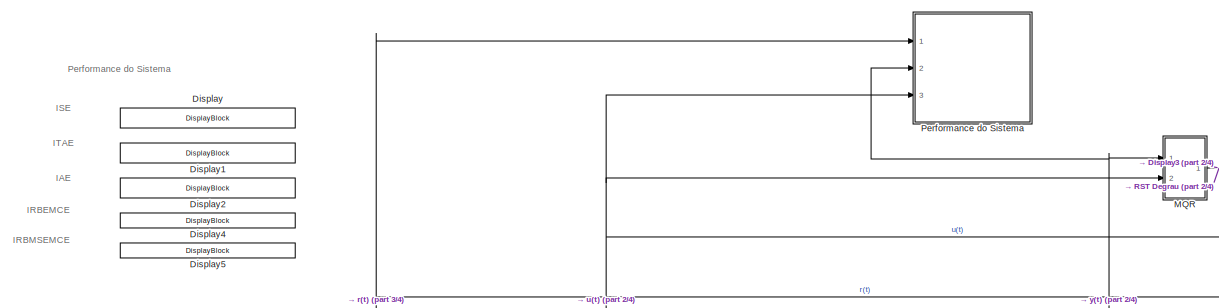
[diagram: root canvas - part 1/4, top center region]
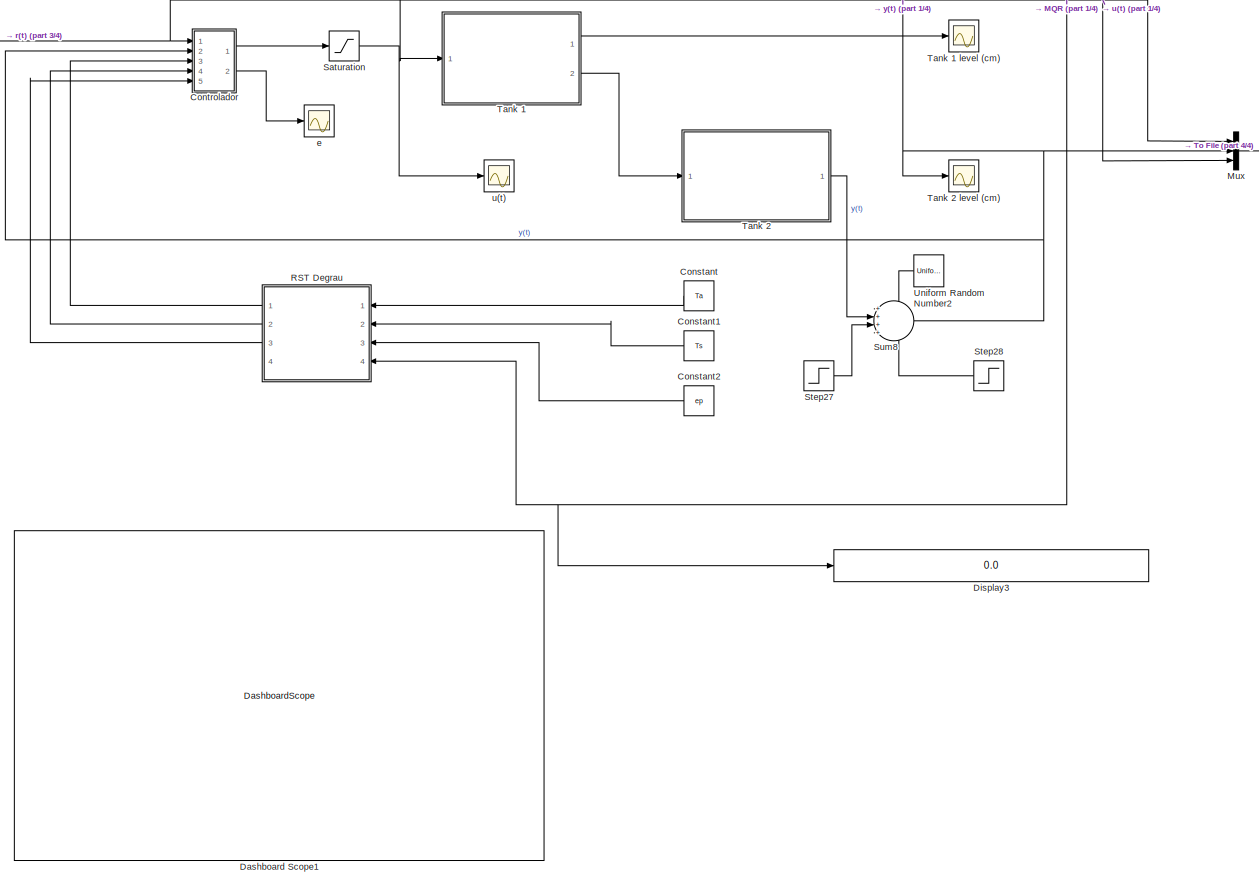
[diagram: root canvas - part 2/4, central region]
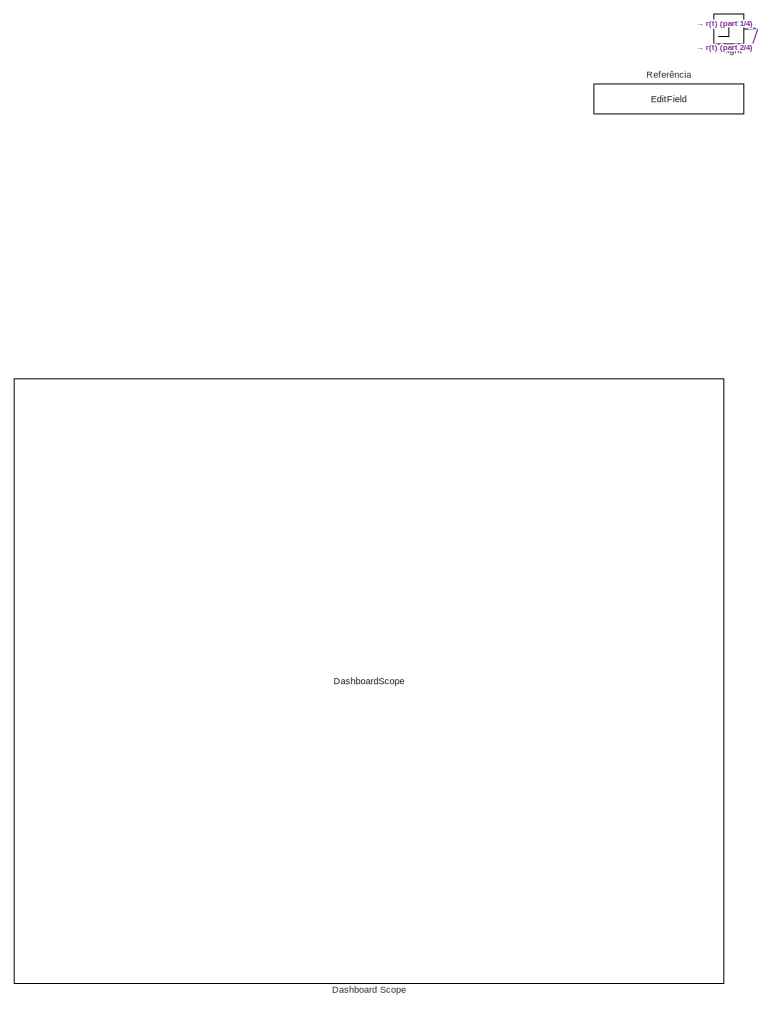
[diagram: root canvas - part 3/4, left side, full height]
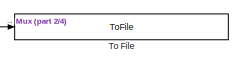
[diagram: root canvas - part 4/4, middle right region]
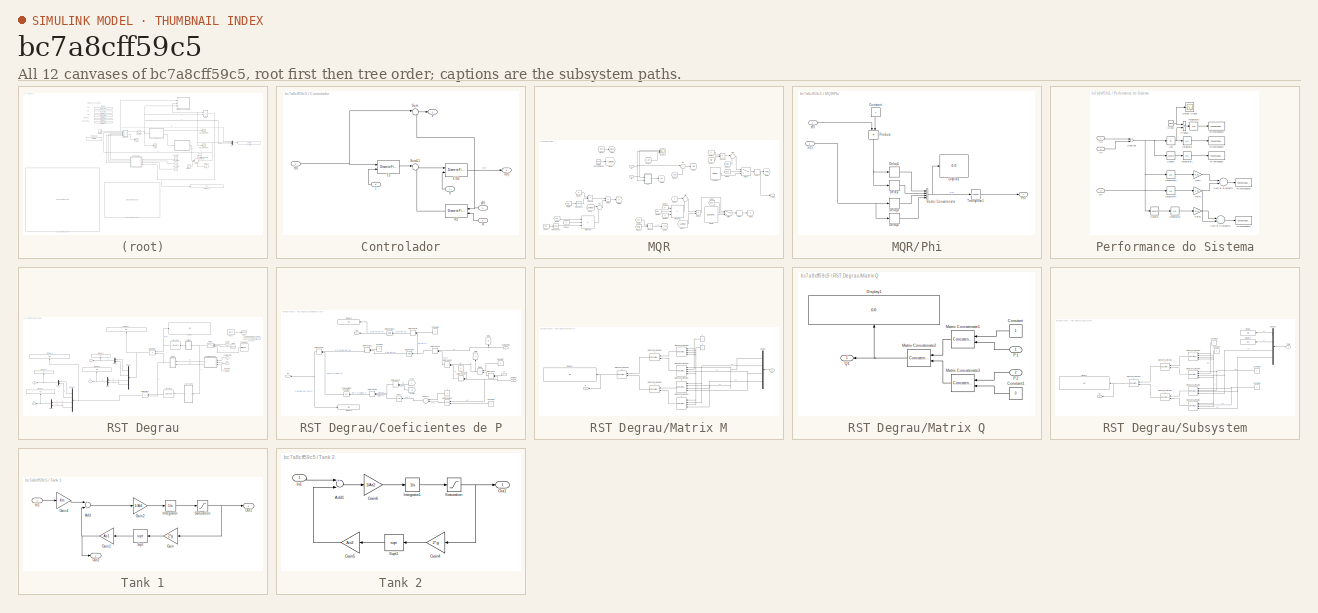
[diagram: thumbnail index - all 12 canvases of the model, root first then tree order]
MODEL slx_bc7a8cff59c5
KIND model
CONFIG AbsTol = auto
CONFIG EnableMultiTasking = off
CONFIG FixedStep = auto
CONFIG InitFcn = g = 981\nKm = 3.3\nAo1 = 0.17\nAt1 = 15.5528\nAo2 = 0.17\nAt2 = 15.5528\nTa = 0.1\nTs = 20\nep = 0.7\ninitial_theta = [-1.752 0.7527 -0.04995 0.05115]
CONFIG MaxStep = auto
CONFIG MinStep = auto
CONFIG RelTol = 1e-3
CONFIG SampleTimeConstraint = Unconstrained
CONFIG Solver = ode45
CONFIG SolverName = ode45
CONFIG StartTime = 0.0
CONFIG StopTime = 1000
BLOCK [Constant] Constant
  Value = Ta
BLOCK [Constant] Constant1
  Value = Ts
BLOCK [Constant] Constant2
  Value = ep
BLOCK [SubSystem] Controlador
  Ports = [5, 2]
  RequestExecContextInheritance = off
BLOCK [DiscreteFilter] Controlador/1//S3
  Denominator = 1
  DenominatorSource = Input port
  InputPortMap = u0,p3
  Numerator = 1
  Ports = [2, 1]
  SampleTime = Ta
  a0EqualsOne = on
BLOCK [Inport] Controlador/R
  IconDisplay = Port number
  Port = 3
BLOCK [DiscreteFilter] Controlador/R3
  Denominator = 1
  InputPortMap = u0,p1
  Numerator = [-620.2 131.3]
  NumeratorSource = Input port
  Ports = [2, 1]
  SampleTime = Ta
BLOCK [Inport] Controlador/S
  IconDisplay = Port number
  Port = 4
BLOCK [Sum] Controlador/Sum
  IconShape = round
  InputSameDT = off
  Inputs = |+-
  OutDataTypeStr = Inherit: Inherit via internal rule
  Ports = [2, 1]
  SaturateOnIntegerOverflow = off
BLOCK [Sum] Controlador/Sum11
  IconShape = round
  InputSameDT = off
  Inputs = |+-
  OutDataTypeStr = Inherit: Inherit via internal rule
  Ports = [2, 1]
  SaturateOnIntegerOverflow = off
BLOCK [Inport] Controlador/T
  IconDisplay = Port number
  Port = 5
BLOCK [DiscreteFilter] Controlador/T3
  Denominator = 1
  InputPortMap = u0,p1
  Numerator = 13.39
  NumeratorSource = Input port
  Ports = [2, 1]
  SampleTime = Ta
BLOCK [Outport] Controlador/e 
  IconDisplay = Port number
  Port = 2
BLOCK [Inport] Controlador/r(t)
  IconDisplay = Port number
BLOCK [Outport] Controlador/u(t)
  IconDisplay = Port number
BLOCK [Inport] Controlador/y(t)
  IconDisplay = Port number
  Port = 2
BLOCK [DashboardScope] Dashboard Scope
  WebBlockId = 688
BLOCK [DashboardScope] Dashboard Scope1
  WebBlockId = 689
BLOCK [DisplayBlock] Display
  LabelPosition = Hide
  WebBlockId = 787
BLOCK [DisplayBlock] Display1
  LabelPosition = Hide
  WebBlockId = 788
BLOCK [DisplayBlock] Display2
  LabelPosition = Hide
  WebBlockId = 789
BLOCK [Display] Display3
  Decimation = 1
  Ports = [1]
BLOCK [DisplayBlock] Display4
  LabelPosition = Hide
  WebBlockId = 790
BLOCK [DisplayBlock] Display5
  LabelPosition = Hide
  WebBlockId = 791
BLOCK [Step] Height
  After = 15
  SampleTime = 0
  Time = 0
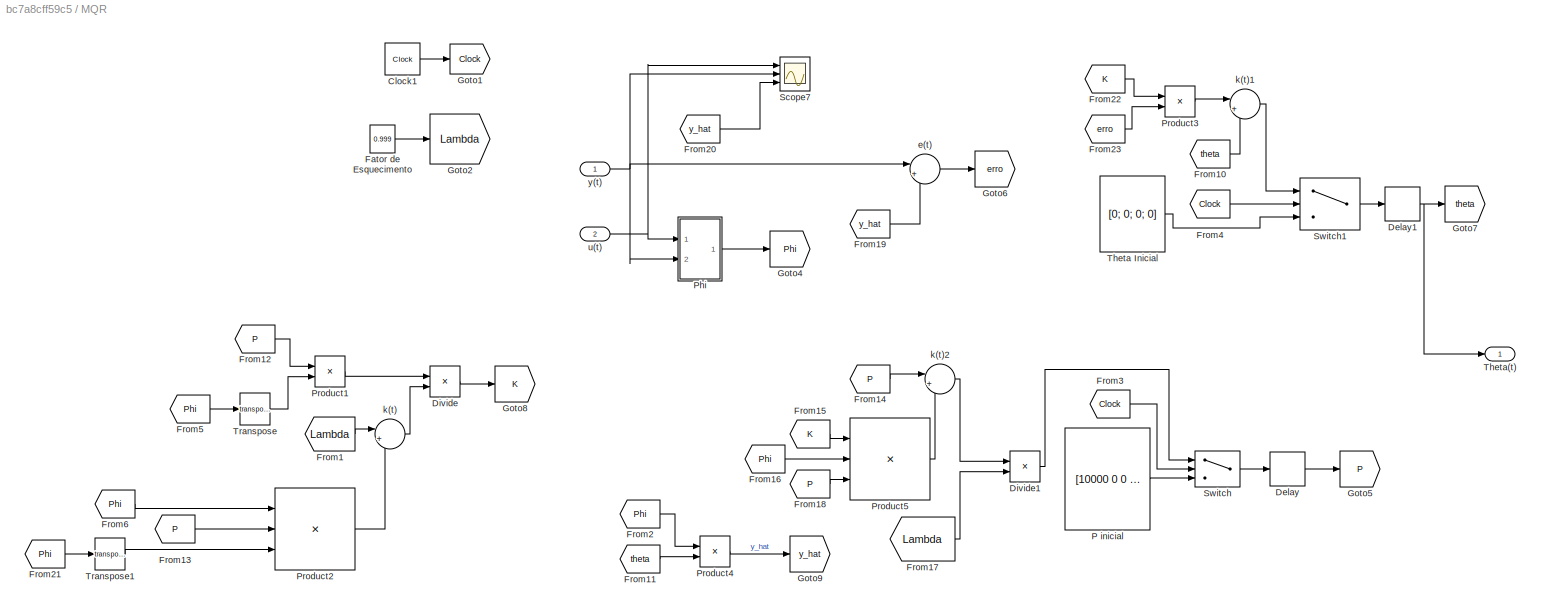
BLOCK [SubSystem] MQR
  Ports = [2, 1]
  RequestExecContextInheritance = off
BLOCK [Clock] MQR/Clock1
BLOCK [Delay] MQR/Delay
  DelayLength = 1
  InitialCondition = 0
  InputPortMap = u0
  Ports = [1, 1]
BLOCK [Delay] MQR/Delay1
  DelayLength = 1
  InitialCondition = 0
  InputPortMap = u0
  Ports = [1, 1]
BLOCK [Product] MQR/Divide
  InputSameDT = off
  Inputs = */
  OutDataTypeStr = Inherit: Inherit via internal rule
  Ports = [2, 1]
  RndMeth = Floor
  SaturateOnIntegerOverflow = off
BLOCK [Product] MQR/Divide1
  InputSameDT = off
  Inputs = */
  OutDataTypeStr = Inherit: Inherit via internal rule
  Ports = [2, 1]
  RndMeth = Floor
  SaturateOnIntegerOverflow = off
BLOCK [Constant] MQR/Fator de Esquecimento 
  Value = 0.999
BLOCK [From] MQR/From1
  GotoTag = Lambda
BLOCK [From] MQR/From10
  GotoTag = theta
BLOCK [From] MQR/From11
  GotoTag = theta
BLOCK [From] MQR/From12
  GotoTag = P
BLOCK [From] MQR/From13
  GotoTag = P
BLOCK [From] MQR/From14
  GotoTag = P
BLOCK [From] MQR/From15
  GotoTag = K
BLOCK [From] MQR/From16
  GotoTag = Phi
BLOCK [From] MQR/From17
  GotoTag = Lambda
BLOCK [From] MQR/From18
  GotoTag = P
BLOCK [From] MQR/From19
  GotoTag = y_hat
BLOCK [From] MQR/From2
  GotoTag = Phi
BLOCK [From] MQR/From20
  GotoTag = y_hat
BLOCK [From] MQR/From21
  GotoTag = Phi
BLOCK [From] MQR/From22
  GotoTag = K
BLOCK [From] MQR/From23
  GotoTag = erro
BLOCK [From] MQR/From3
  GotoTag = Clock
BLOCK [From] MQR/From4
  GotoTag = Clock
BLOCK [From] MQR/From5
  GotoTag = Phi
BLOCK [From] MQR/From6
  GotoTag = Phi
BLOCK [Goto] MQR/Goto1
  GotoTag = Clock
BLOCK [Goto] MQR/Goto2
  GotoTag = Lambda
BLOCK [Goto] MQR/Goto4
  GotoTag = Phi
BLOCK [Goto] MQR/Goto5
  GotoTag = P
BLOCK [Goto] MQR/Goto6
  GotoTag = erro
BLOCK [Goto] MQR/Goto7
  GotoTag = theta
BLOCK [Goto] MQR/Goto8
  GotoTag = K
BLOCK [Goto] MQR/Goto9
  GotoTag = y_hat
BLOCK [Constant] MQR/P inicial
  Value = [10000 0 0 0; 0 10000 0 0; 0 0 10000 0; 0 0 0 10000]
BLOCK [SubSystem] MQR/Phi
  Ports = [2, 1]
  RequestExecContextInheritance = off
BLOCK [Constant] MQR/Phi/Constant
  Value = -1
BLOCK [Delay] MQR/Phi/Delay
  InputPortMap = u0
  Ports = [1, 1]
BLOCK [Delay] MQR/Phi/Delay1
  DelayLength = 1
  InputPortMap = u0
  Ports = [1, 1]
BLOCK [Delay] MQR/Phi/Delay2
  InputPortMap = u0
  Ports = [1, 1]
BLOCK [Delay] MQR/Phi/Delay3
  DelayLength = 1
  InputPortMap = u0
  Ports = [1, 1]
BLOCK [Display] MQR/Phi/Display
  Decimation = 1
  Ports = [1]
BLOCK [Outport] MQR/Phi/Phi
  IconDisplay = Port number
BLOCK [Product] MQR/Phi/Product
  InputSameDT = off
  OutDataTypeStr = Inherit: Inherit via internal rule
  Ports = [2, 1]
  RndMeth = Floor
  SaturateOnIntegerOverflow = off
BLOCK [Math] MQR/Phi/Transpose1
  Operator = transpose
  Ports = [1, 1]
BLOCK [Concatenate] MQR/Phi/Vector Concatenate
  NumInputs = 4
  Ports = [4, 1]
BLOCK [Inport] MQR/Phi/u(t)
  IconDisplay = Port number
BLOCK [Inport] MQR/Phi/y(t)
  IconDisplay = Port number
  Port = 2
BLOCK [Product] MQR/Product1
  InputSameDT = off
  Multiplication = Matrix(*)
  OutDataTypeStr = Inherit: Inherit via internal rule
  Ports = [2, 1]
  RndMeth = Floor
  SaturateOnIntegerOverflow = off
BLOCK [Product] MQR/Product2
  InputSameDT = off
  Inputs = 3
  Multiplication = Matrix(*)
  OutDataTypeStr = Inherit: Inherit via internal rule
  Ports = [3, 1]
  RndMeth = Floor
  SaturateOnIntegerOverflow = off
BLOCK [Product] MQR/Product3
  InputSameDT = off
  Multiplication = Matrix(*)
  OutDataTypeStr = Inherit: Inherit via internal rule
  Ports = [2, 1]
  RndMeth = Floor
  SaturateOnIntegerOverflow = off
BLOCK [Product] MQR/Product4
  InputSameDT = off
  Multiplication = Matrix(*)
  OutDataTypeStr = Inherit: Inherit via internal rule
  Ports = [2, 1]
  RndMeth = Floor
  SaturateOnIntegerOverflow = off
BLOCK [Product] MQR/Product5
  InputSameDT = off
  Inputs = 3
  Multiplication = Matrix(*)
  OutDataTypeStr = Inherit: Inherit via internal rule
  Ports = [3, 1]
  RndMeth = Floor
  SaturateOnIntegerOverflow = off
BLOCK [Scope] MQR/Scope7
  Floating = off
  NumInputPorts = 3
  Ports = [3]
  ScopeSpecificationString = Simulink.scopes.TimeScopeBlockCfg('CurrentConfiguration', extmgr.ConfigurationSet(extmgr.Configuration('Core','General UI',true,'FigureColor',[0.156862745098039 0.156862745098039 0.156862745098039]),extmgr.Configuration('Core','Source UI',true),extmgr.Configuration('Sources','WiredSimulink',true,'DataLoggingVariableName','ScopeData1','DataLoggingSaveFormat','StructureWithTime','DataLoggingDecimati...<+3159ch>
BLOCK [Switch] MQR/Switch
  Criteria = u2 > Threshold
  InputSameDT = off
  SaturateOnIntegerOverflow = off
BLOCK [Switch] MQR/Switch1
  Criteria = u2 > Threshold
  InputSameDT = off
  SaturateOnIntegerOverflow = off
BLOCK [Constant] MQR/Theta Inicial 
  Value = [0; 0; 0; 0]
BLOCK [Outport] MQR/Theta(t) 
  IconDisplay = Port number
BLOCK [Math] MQR/Transpose
  Operator = transpose
  Ports = [1, 1]
BLOCK [Math] MQR/Transpose1
  Operator = transpose
  Ports = [1, 1]
BLOCK [Sum] MQR/e(t)
  IconShape = round
  InputSameDT = off
  Inputs = |+-
  OutDataTypeStr = Inherit: Inherit via internal rule
  Ports = [2, 1]
  SaturateOnIntegerOverflow = off
BLOCK [Sum] MQR/k(t)
  IconShape = round
  InputSameDT = off
  Inputs = |++
  OutDataTypeStr = Inherit: Inherit via internal rule
  Ports = [2, 1]
  SaturateOnIntegerOverflow = off
BLOCK [Sum] MQR/k(t)1
  IconShape = round
  InputSameDT = off
  Inputs = |++
  OutDataTypeStr = Inherit: Inherit via internal rule
  Ports = [2, 1]
  SaturateOnIntegerOverflow = off
BLOCK [Sum] MQR/k(t)2
  IconShape = round
  InputSameDT = off
  Inputs = |+-
  OutDataTypeStr = Inherit: Inherit via internal rule
  Ports = [2, 1]
  SaturateOnIntegerOverflow = off
BLOCK [Inport] MQR/u(t) 
  IconDisplay = Port number
  Port = 2
BLOCK [Inport] MQR/y(t)
  IconDisplay = Port number
BLOCK [Mux] Mux
  DisplayOption = bar
  Inputs = 3
  Ports = [3, 1]
BLOCK [SubSystem] Performance do Sistema
  Ports = [3]
  RequestExecContextInheritance = off
BLOCK [Abs] Performance do Sistema/Abs
  SaturateOnIntegerOverflow = off
BLOCK [Clock] Performance do Sistema/Clock
  Decimation = 1
BLOCK [Gain] Performance do Sistema/Gain
  Gain = 0.01
  OutDataTypeStr = Inherit: Inherit via internal rule
  ParamDataTypeStr = Inherit: Inherit via internal rule
  SaturateOnIntegerOverflow = off
BLOCK [Gain] Performance do Sistema/Gain1
  Gain = 0.01
  OutDataTypeStr = Inherit: Inherit via internal rule
  ParamDataTypeStr = Inherit: Inherit via internal rule
  SaturateOnIntegerOverflow = off
BLOCK [Gain] Performance do Sistema/Gain2
  Gain = 0.01
  OutDataTypeStr = Inherit: Inherit via internal rule
  ParamDataTypeStr = Inherit: Inherit via internal rule
  SaturateOnIntegerOverflow = off
BLOCK [Integrator] Performance do Sistema/Integrator
  Ports = [1, 1]
BLOCK [Integrator] Performance do Sistema/Integrator1
  Ports = [1, 1]
BLOCK [Integrator] Performance do Sistema/Integrator2
  Ports = [1, 1]
BLOCK [Integrator] Performance do Sistema/Integrator3
  Ports = [1, 1]
BLOCK [Integrator] Performance do Sistema/Integrator4
  Ports = [1, 1]
BLOCK [Integrator] Performance do Sistema/Integrator5
  Ports = [1, 1]
BLOCK [Scope] Performance do Sistema/Output Signal
  Floating = off
  NumInputPorts = 1
  Ports = [1]
  ScopeSpecificationString = Simulink.scopes.TimeScopeBlockCfg('CurrentConfiguration', extmgr.ConfigurationSet(extmgr.Configuration('Core','General UI',true,'FigureColor',[1 1 1]),extmgr.Configuration('Core','Source UI',true),extmgr.Configuration('Sources','WiredSimulink',true,'DataLoggingVariableName','ScopeData1','DataLoggingSaveFormat','StructureWithTime','DataLoggingDecimation','1','DataLoggingDecimateData',true),extmgr.C...<+2862ch>
BLOCK [Product] Performance do Sistema/Product
  InputSameDT = off
  OutDataTypeStr = Inherit: Inherit via internal rule
  Ports = [2, 1]
  RndMeth = Floor
  SaturateOnIntegerOverflow = off
BLOCK [Math] Performance do Sistema/Square
  Operator = square
  Ports = [1, 1]
BLOCK [Math] Performance do Sistema/Square1
  Operator = square
  Ports = [1, 1]
BLOCK [Sum] Performance do Sistema/Subtract
  InputSameDT = off
  Inputs = +-
  OutDataTypeStr = Inherit: Inherit via internal rule
  Ports = [2, 1]
  SaturateOnIntegerOverflow = off
BLOCK [Sum] Performance do Sistema/Sum of Elements
  InputSameDT = off
  OutDataTypeStr = Inherit: Inherit via internal rule
  Ports = [2, 1]
  SaturateOnIntegerOverflow = off
BLOCK [Sum] Performance do Sistema/Sum of Elements1
  InputSameDT = off
  OutDataTypeStr = Inherit: Inherit via internal rule
  Ports = [2, 1]
  SaturateOnIntegerOverflow = off
BLOCK [ToWorkspace] Performance do Sistema/To Workspace
  FixptAsFi = on
  MaxDataPoints = inf
  Ports = [1]
  SampleTime = -1
  Save2DSignal = 3-D array (concatenate along third dimension)
  SaveFormat = Timeseries
  VariableName = ISE
BLOCK [ToWorkspace] Performance do Sistema/To Workspace1
  FixptAsFi = on
  MaxDataPoints = inf
  Ports = [1]
  SampleTime = -1
  Save2DSignal = 3-D array (concatenate along third dimension)
  SaveFormat = Timeseries
  VariableName = IAE
BLOCK [ToWorkspace] Performance do Sistema/To Workspace2
  FixptAsFi = on
  MaxDataPoints = inf
  Ports = [1]
  SampleTime = -1
  Save2DSignal = 3-D array (concatenate along third dimension)
  SaveFormat = Timeseries
  VariableName = ITAE
BLOCK [ToWorkspace] Performance do Sistema/To Workspace3
  FixptAsFi = on
  MaxDataPoints = inf
  Ports = [1]
  SampleTime = -1
  Save2DSignal = 3-D array (concatenate along third dimension)
  SaveFormat = Timeseries
  VariableName = IRBEMCE
BLOCK [ToWorkspace] Performance do Sistema/To Workspace4
  FixptAsFi = on
  MaxDataPoints = inf
  Ports = [1]
  SampleTime = -1
  Save2DSignal = 3-D array (concatenate along third dimension)
  SaveFormat = Timeseries
  VariableName = IRBMSEMCE
BLOCK [Inport] Performance do Sistema/r(t)
  IconDisplay = Port number
BLOCK [Inport] Performance do Sistema/u(t)
  IconDisplay = Port number
  Port = 3
BLOCK [Inport] Performance do Sistema/y(t)
  IconDisplay = Port number
  Port = 2
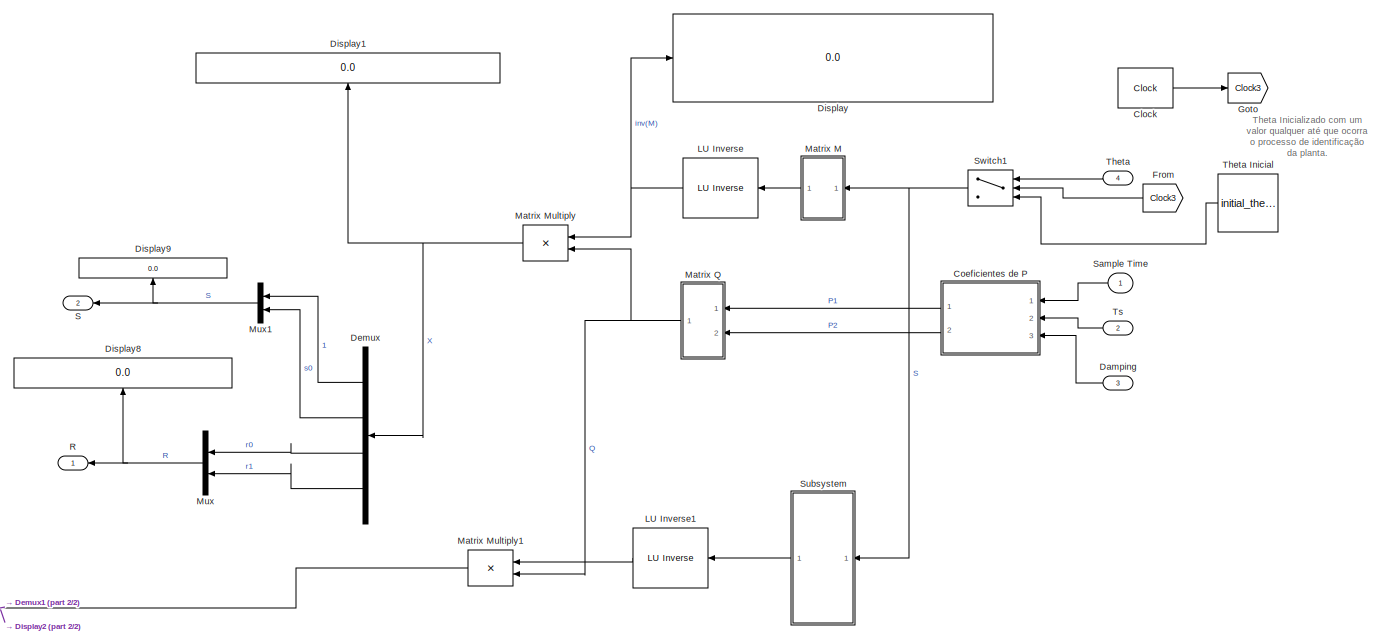
[diagram: RST Degrau - part 1/2, most of the canvas]
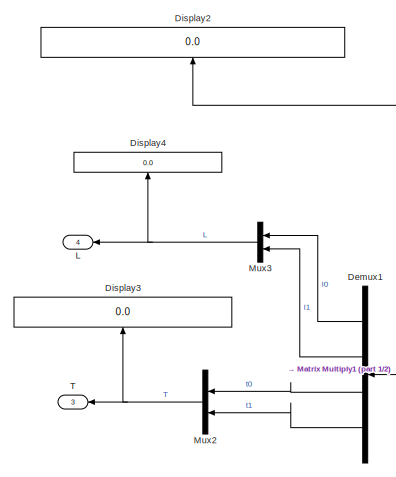
[diagram: RST Degrau - part 2/2, middle left region]
BLOCK [SubSystem] RST Degrau
  Ports = [4, 4]
  RequestExecContextInheritance = off
BLOCK [Reference] RST Degrau/ LU Inverse  REF=dspinverses/ LU Inverse
  Ports = [1, 1]
  SourceBlock = dspinverses/ LU Inverse
  SourceProductBaseCode = DS
  SourceProductName = DSP System Toolbox
  SourceType = LU Inverse
BLOCK [Reference] RST Degrau/ LU Inverse1  REF=dspinverses/ LU Inverse
  Ports = [1, 1]
  SourceBlock = dspinverses/ LU Inverse
  SourceProductBaseCode = DS
  SourceProductName = DSP System Toolbox
  SourceType = LU Inverse
BLOCK [Clock] RST Degrau/Clock
  DisplayTime = on
BLOCK [SubSystem] RST Degrau/Coeficientes de P
  Ports = [3, 2]
  RequestExecContextInheritance = off
BLOCK [Constant] RST Degrau/Coeficientes de P/ 
  Value = -1
BLOCK [Constant] RST Degrau/Coeficientes de P/1
BLOCK [Constant] RST Degrau/Coeficientes de P/Constant
  Value = 4
BLOCK [Constant] RST Degrau/Coeficientes de P/Constant1
  Value = -2
BLOCK [Constant] RST Degrau/Coeficientes de P/Constant2
  Value = 2
BLOCK [Constant] RST Degrau/Coeficientes de P/Constant3
  Value = 2
BLOCK [Inport] RST Degrau/Coeficientes de P/Damping
  IconDisplay = Port number
  Port = 3
BLOCK [Display] RST Degrau/Coeficientes de P/Display1
  Decimation = 1
  Ports = [1]
BLOCK [Display] RST Degrau/Coeficientes de P/Display3
  Decimation = 1
  Ports = [1]
BLOCK [Product] RST Degrau/Coeficientes de P/Divide
  InputSameDT = off
  Inputs = */
  OutDataTypeStr = Inherit: Inherit via internal rule
  Ports = [2, 1]
  RndMeth = Floor
  SaturateOnIntegerOverflow = off
BLOCK [DotProduct] RST Degrau/Coeficientes de P/Dot Product
  OutDataTypeStr = Inherit: Inherit via internal rule
BLOCK [DotProduct] RST Degrau/Coeficientes de P/Dot Product1
  OutDataTypeStr = Inherit: Inherit via internal rule
BLOCK [DotProduct] RST Degrau/Coeficientes de P/Dot Product2
  OutDataTypeStr = Inherit: Inherit via internal rule
BLOCK [DotProduct] RST Degrau/Coeficientes de P/Dot Product3
  OutDataTypeStr = Inherit: Inherit via internal rule
BLOCK [DotProduct] RST Degrau/Coeficientes de P/Dot Product4
  OutDataTypeStr = Inherit: Inherit via internal rule
BLOCK [DotProduct] RST Degrau/Coeficientes de P/Dot Product5
  OutDataTypeStr = Inherit: Inherit via internal rule
BLOCK [DotProduct] RST Degrau/Coeficientes de P/Dot Product6
  OutDataTypeStr = Inherit: Inherit via internal rule
BLOCK [DotProduct] RST Degrau/Coeficientes de P/Dot Product7
  OutDataTypeStr = Inherit: Inherit via internal rule
BLOCK [DotProduct] RST Degrau/Coeficientes de P/Dot Product8
  OutDataTypeStr = Inherit: Inherit via internal rule
BLOCK [From] RST Degrau/Coeficientes de P/From
BLOCK [From] RST Degrau/Coeficientes de P/From1
  GotoTag = B
BLOCK [Goto] RST Degrau/Coeficientes de P/Goto
BLOCK [Goto] RST Degrau/Coeficientes de P/Goto1
  GotoTag = B
BLOCK [Math] RST Degrau/Coeficientes de P/Math Function
  Ports = [1, 1]
BLOCK [Math] RST Degrau/Coeficientes de P/Math Function1
  Operator = pow
  Ports = [2, 1]
BLOCK [Math] RST Degrau/Coeficientes de P/Math Function2
  Ports = [1, 1]
BLOCK [Outport] RST Degrau/Coeficientes de P/P1
  IconDisplay = Port number
BLOCK [Outport] RST Degrau/Coeficientes de P/P2
  IconDisplay = Port number
  Port = 2
BLOCK [Inport] RST Degrau/Coeficientes de P/Sample Time
  IconDisplay = Port number
BLOCK [Sqrt] RST Degrau/Coeficientes de P/Sqrt
BLOCK [Sum] RST Degrau/Coeficientes de P/Subtract
  InputSameDT = off
  Inputs = +-
  OutDataTypeStr = Inherit: Inherit via internal rule
  Ports = [2, 1]
  SaturateOnIntegerOverflow = off
BLOCK [Trigonometry] RST Degrau/Coeficientes de P/Trigonometric Function1
  Operator = cos
  Ports = [1, 1]
BLOCK [Inport] RST Degrau/Coeficientes de P/Ts
  IconDisplay = Port number
  Port = 2
BLOCK [Inport] RST Degrau/Damping
  IconDisplay = Port number
  Port = 3
BLOCK [Demux] RST Degrau/Demux
  DisplayOption = bar
  Ports = [1, 4]
BLOCK [Demux] RST Degrau/Demux1
  DisplayOption = bar
  Ports = [1, 4]
BLOCK [Display] RST Degrau/Display
  Decimation = 1
  Ports = [1]
BLOCK [Display] RST Degrau/Display1
  Decimation = 1
  Ports = [1]
BLOCK [Display] RST Degrau/Display2
  Decimation = 1
  Ports = [1]
BLOCK [Display] RST Degrau/Display3
  Decimation = 1
  Ports = [1]
BLOCK [Display] RST Degrau/Display4
  Decimation = 1
  Ports = [1]
BLOCK [Display] RST Degrau/Display8
  Decimation = 1
  Ports = [1]
BLOCK [Display] RST Degrau/Display9
  Decimation = 1
  Ports = [1]
BLOCK [From] RST Degrau/From
  GotoTag = Clock3
BLOCK [Goto] RST Degrau/Goto
  GotoTag = Clock3
BLOCK [Outport] RST Degrau/L
  IconDisplay = Port number
  Port = 4
BLOCK [SubSystem] RST Degrau/Matrix M
  Ports = [1, 1]
  RequestExecContextInheritance = off
BLOCK [Constant] RST Degrau/Matrix M/ 1
  Value = 0
BLOCK [Constant] RST Degrau/Matrix M/2
BLOCK [Demux] RST Degrau/Matrix M/Demux
  DisplayOption = bar
  Ports = [1, 4]
BLOCK [Display] RST Degrau/Matrix M/Display1
  Decimation = 1
  Ports = [1]
BLOCK [Inport] RST Degrau/Matrix M/In1
  IconDisplay = Port number
BLOCK [Outport] RST Degrau/Matrix M/M
  IconDisplay = Port number
BLOCK [Concatenate] RST Degrau/Matrix M/Matrix Concatenate10
  ConcatenateDimension = 2
  Mode = Multidimensional array
  NumInputs = 4
  Ports = [4, 1]
BLOCK [Concatenate] RST Degrau/Matrix M/Matrix Concatenate11
  ConcatenateDimension = 2
  Mode = Multidimensional array
  NumInputs = 4
  Ports = [4, 1]
BLOCK [Concatenate] RST Degrau/Matrix M/Matrix Concatenate12
  Mode = Multidimensional array
  Ports = [2, 1]
BLOCK [Concatenate] RST Degrau/Matrix M/Matrix Concatenate13
  Mode = Multidimensional array
  Ports = [2, 1]
BLOCK [Concatenate] RST Degrau/Matrix M/Matrix Concatenate14
  Mode = Multidimensional array
  Ports = [2, 1]
BLOCK [Concatenate] RST Degrau/Matrix M/Matrix Concatenate6
  ConcatenateDimension = 2
  Mode = Multidimensional array
  NumInputs = 4
  Ports = [4, 1]
BLOCK [Concatenate] RST Degrau/Matrix M/Matrix Concatenate9
  ConcatenateDimension = 2
  Mode = Multidimensional array
  NumInputs = 4
  Ports = [4, 1]
BLOCK [Product] RST Degrau/Matrix Multiply
  InputSameDT = off
  Multiplication = Matrix(*)
  OutDataTypeStr = Inherit: Inherit via internal rule
  Ports = [2, 1]
  RndMeth = Floor
  SaturateOnIntegerOverflow = off
BLOCK [Product] RST Degrau/Matrix Multiply1
  InputSameDT = off
  Multiplication = Matrix(*)
  OutDataTypeStr = Inherit: Inherit via internal rule
  Ports = [2, 1]
  RndMeth = Floor
  SaturateOnIntegerOverflow = off
BLOCK [SubSystem] RST Degrau/Matrix Q
  Ports = [2, 1]
  RequestExecContextInheritance = off
BLOCK [Constant] RST Degrau/Matrix Q/Constant
BLOCK [Constant] RST Degrau/Matrix Q/Constant1
  Value = 0
BLOCK [Display] RST Degrau/Matrix Q/Display1
  Decimation = 1
  Ports = [1]
BLOCK [Concatenate] RST Degrau/Matrix Q/Matrix Concatenate1
  Mode = Multidimensional array
  Ports = [2, 1]
BLOCK [Concatenate] RST Degrau/Matrix Q/Matrix Concatenate2
  Mode = Multidimensional array
  Ports = [2, 1]
BLOCK [Concatenate] RST Degrau/Matrix Q/Matrix Concatenate3
  Mode = Multidimensional array
  Ports = [2, 1]
BLOCK [Inport] RST Degrau/Matrix Q/P1
  IconDisplay = Port number
BLOCK [Inport] RST Degrau/Matrix Q/P2
  IconDisplay = Port number
  Port = 2
BLOCK [Outport] RST Degrau/Matrix Q/Q1
  IconDisplay = Port number
BLOCK [Mux] RST Degrau/Mux
  DisplayOption = bar
  Inputs = 2
  Ports = [2, 1]
BLOCK [Mux] RST Degrau/Mux1
  DisplayOption = bar
  Inputs = 2
  Ports = [2, 1]
BLOCK [Mux] RST Degrau/Mux2
  DisplayOption = bar
  Inputs = 2
  Ports = [2, 1]
BLOCK [Mux] RST Degrau/Mux3
  DisplayOption = bar
  Inputs = 2
  Ports = [2, 1]
BLOCK [Outport] RST Degrau/R
  IconDisplay = Port number
BLOCK [Outport] RST Degrau/S
  IconDisplay = Port number
  Port = 2
BLOCK [Inport] RST Degrau/Sample Time
  IconDisplay = Port number
BLOCK [SubSystem] RST Degrau/Subsystem
  Ports = [1, 1]
  RequestExecContextInheritance = off
BLOCK [Constant] RST Degrau/Subsystem/Constant1
BLOCK [Constant] RST Degrau/Subsystem/Constant2
  Value = -1
BLOCK [Constant] RST Degrau/Subsystem/Constant3
  Value = 0
BLOCK [Constant] RST Degrau/Subsystem/Constant4
  Value = 0
BLOCK [Demux] RST Degrau/Subsystem/Demux1
  DisplayOption = bar
  Ports = [1, 4]
BLOCK [Display] RST Degrau/Subsystem/Display
  Decimation = 1
  Ports = [1]
BLOCK [Display] RST Degrau/Subsystem/Display1
  Decimation = 1
  Ports = [1]
BLOCK [Display] RST Degrau/Subsystem/Display2
  Decimation = 1
  Ports = [1]
BLOCK [Outport] RST Degrau/Subsystem/M2
  IconDisplay = Port number
BLOCK [Concatenate] RST Degrau/Subsystem/Matrix Concatenate12
  Mode = Multidimensional array
  Ports = [2, 1]
BLOCK [Concatenate] RST Degrau/Subsystem/Matrix Concatenate13
  Mode = Multidimensional array
  Ports = [2, 1]
BLOCK [Concatenate] RST Degrau/Subsystem/Matrix Concatenate14
  Mode = Multidimensional array
  Ports = [2, 1]
BLOCK [Concatenate] RST Degrau/Subsystem/Matrix Concatenate2
  ConcatenateDimension = 2
  Mode = Multidimensional array
  NumInputs = 4
  Ports = [4, 1]
BLOCK [Concatenate] RST Degrau/Subsystem/Matrix Concatenate4
  ConcatenateDimension = 2
  Mode = Multidimensional array
  NumInputs = 4
  Ports = [4, 1]
BLOCK [Concatenate] RST Degrau/Subsystem/Matrix Concatenate5
  ConcatenateDimension = 2
  Mode = Multidimensional array
  NumInputs = 4
  Ports = [4, 1]
BLOCK [Concatenate] RST Degrau/Subsystem/Matrix Concatenate6
  ConcatenateDimension = 2
  Mode = Multidimensional array
  NumInputs = 4
  Ports = [4, 1]
BLOCK [Inport] RST Degrau/Subsystem/Theta
  IconDisplay = Port number
BLOCK [Switch] RST Degrau/Switch1
  Criteria = u2 > Threshold
  InputSameDT = off
  SaturateOnIntegerOverflow = off
  Threshold = 1
BLOCK [Outport] RST Degrau/T
  IconDisplay = Port number
  Port = 3
BLOCK [Inport] RST Degrau/Theta
  IconDisplay = Port number
  Port = 4
BLOCK [Constant] RST Degrau/Theta Inicial
  Value = initial_theta
BLOCK [Inport] RST Degrau/Ts
  IconDisplay = Port number
  Port = 2
BLOCK [EditField] Referência
  Alignment = Center
  LabelPosition = Hide
  WebBlockId = 683
BLOCK [Saturate] Saturation
  InputPortMap = u0
  LowerLimit = -12
  Ports = [1, 1]
  UpperLimit = 12
BLOCK [Step] Step27
  SampleTime = 0
  Time = 60
BLOCK [Step] Step28
  After = -1
  SampleTime = 0
  Time = 61
BLOCK [Sum] Sum8
  IconShape = round
  InputSameDT = off
  Inputs = ++++
  OutDataTypeStr = Inherit: Inherit via internal rule
  Ports = [4, 1]
  SaturateOnIntegerOverflow = off
BLOCK [SubSystem] Tank 1
  Ports = [1, 2]
  RequestExecContextInheritance = off
BLOCK [Scope] Tank 1 level (cm) 
  Floating = off
  NumInputPorts = 1
  Ports = [1]
  ScopeSpecificationString = Simulink.scopes.TimeScopeBlockCfg('CurrentConfiguration', extmgr.ConfigurationSet(extmgr.Configuration('Core','General UI',true,'FigureColor',[0.156862745098039 0.156862745098039 0.156862745098039]),extmgr.Configuration('Core','Source UI',true),extmgr.Configuration('Sources','WiredSimulink',true,'DataLoggingSaveFormat','StructureWithTime','DataLoggingDecimation','1','DataLoggingDecimateData',true)...<+2771ch>
BLOCK [Sum] Tank 1/Add
  InputSameDT = off
  Inputs = +-
  OutDataTypeStr = Inherit: Inherit via internal rule
  Ports = [2, 1]
  SaturateOnIntegerOverflow = off
BLOCK [Gain] Tank 1/Gain
  Gain = 2*g
  OutDataTypeStr = Inherit: Inherit via internal rule
  ParamDataTypeStr = Inherit: Inherit via internal rule
  SaturateOnIntegerOverflow = off
BLOCK [Gain] Tank 1/Gain1
  Gain = Ao1
  OutDataTypeStr = Inherit: Inherit via internal rule
  ParamDataTypeStr = Inherit: Inherit via internal rule
  SaturateOnIntegerOverflow = off
BLOCK [Gain] Tank 1/Gain2
  Gain = 1/At1
  OutDataTypeStr = Inherit: Inherit via internal rule
  ParamDataTypeStr = Inherit: Inherit via internal rule
  SaturateOnIntegerOverflow = off
BLOCK [Gain] Tank 1/Gain4
  Gain = Km
  OutDataTypeStr = Inherit: Inherit via internal rule
  ParamDataTypeStr = Inherit: Inherit via internal rule
  SaturateOnIntegerOverflow = off
BLOCK [Inport] Tank 1/In1
  IconDisplay = Port number
BLOCK [Integrator] Tank 1/Integrator
  Ports = [1, 1]
BLOCK [Outport] Tank 1/Out1
  IconDisplay = Port number
BLOCK [Outport] Tank 1/Out2
  IconDisplay = Port number
  Port = 2
BLOCK [Saturate] Tank 1/Saturation
  InputPortMap = u0
  LowerLimit = 0
  Ports = [1, 1]
  UpperLimit = 30
BLOCK [Sqrt] Tank 1/Sqrt
BLOCK [SubSystem] Tank 2
  Ports = [1, 1]
  RequestExecContextInheritance = off
BLOCK [Scope] Tank 2 level (cm) 
  Floating = off
  NumInputPorts = 1
  Ports = [1]
  ScopeSpecificationString = Simulink.scopes.TimeScopeBlockCfg('CurrentConfiguration', extmgr.ConfigurationSet(extmgr.Configuration('Core','General UI',true,'FigureColor',[0.156862745098039 0.156862745098039 0.156862745098039]),extmgr.Configuration('Core','Source UI',true),extmgr.Configuration('Sources','WiredSimulink',true,'DataLoggingVariableName','ScopeData1','DataLoggingSaveFormat','StructureWithTime','DataLoggingDecimati...<+2781ch>
BLOCK [Sum] Tank 2/Add1
  InputSameDT = off
  Inputs = +-
  OutDataTypeStr = Inherit: Inherit via internal rule
  Ports = [2, 1]
  SaturateOnIntegerOverflow = off
BLOCK [Gain] Tank 2/Gain4
  Gain = 2*g
  OutDataTypeStr = Inherit: Inherit via internal rule
  ParamDataTypeStr = Inherit: Inherit via internal rule
  SaturateOnIntegerOverflow = off
BLOCK [Gain] Tank 2/Gain5
  Gain = Ao2
  OutDataTypeStr = Inherit: Inherit via internal rule
  ParamDataTypeStr = Inherit: Inherit via internal rule
  SaturateOnIntegerOverflow = off
BLOCK [Gain] Tank 2/Gain6
  Gain = 1/At2
  OutDataTypeStr = Inherit: Inherit via internal rule
  ParamDataTypeStr = Inherit: Inherit via internal rule
  SaturateOnIntegerOverflow = off
BLOCK [Inport] Tank 2/In1
  IconDisplay = Port number
BLOCK [Integrator] Tank 2/Integrator1
  Ports = [1, 1]
BLOCK [Outport] Tank 2/Out1
  IconDisplay = Port number
BLOCK [Saturate] Tank 2/Saturation
  InputPortMap = u0
  LowerLimit = 0
  Ports = [1, 1]
  UpperLimit = 30
BLOCK [Sqrt] Tank 2/Sqrt1
BLOCK [ToFile] To File
  Filename = auto_reg_coupled_tanks_with_error_values.mat
  Ports = [1]
BLOCK [UniformRandomNumber] Uniform Random Number2
  Maximum = 0.01
  Minimum = -0.01
  SampleTime = 0
BLOCK [Scope] e
  Floating = off
  NumInputPorts = 1
  Ports = [1]
  ScopeSpecificationString = Simulink.scopes.TimeScopeBlockCfg('CurrentConfiguration', extmgr.ConfigurationSet(extmgr.Configuration('Core','General UI',true,'FigureColor',[0.156862745098039 0.156862745098039 0.156862745098039]),extmgr.Configuration('Core','Source UI',true),extmgr.Configuration('Sources','WiredSimulink',true,'DataLoggingSaveFormat','StructureWithTime','DataLoggingDecimation','1','DataLoggingDecimateData',true,...<+2815ch>
BLOCK [Scope] u(t)
  Floating = off
  NumInputPorts = 1
  Ports = [1]
  ScopeSpecificationString = Simulink.scopes.TimeScopeBlockCfg('CurrentConfiguration', extmgr.ConfigurationSet(extmgr.Configuration('Core','General UI',true,'FigureColor',[0.156862745098039 0.156862745098039 0.156862745098039]),extmgr.Configuration('Core','Source UI',true),extmgr.Configuration('Sources','WiredSimulink',true,'DataLoggingSaveFormat','StructureWithTime','DataLoggingDecimation','1','DataLoggingDecimateData',true,...<+2777ch>
ANNOTATION (root): Performance do Sistema
ANNOTATION (root): IAE
ANNOTATION (root): IRBEMCE
ANNOTATION (root): IRBMSEMCE
ANNOTATION (root): ISE
ANNOTATION (root): ITAE
ANNOTATION RST Degrau: Theta Inicializado com um valor qualquer até que ocorra o processo de identificação da planta.
LINE Constant1:1 -> RST Degrau:2
LINE Constant2:1 -> RST Degrau:3
LINE Constant:1 -> RST Degrau:1
LINE Controlador/1//S3:1 -> Controlador/u(t):1
LINE Controlador/R3:1 -> Controlador/Sum11:2
LINE Controlador/R:1 -> Controlador/R3:2
LINE Controlador/S:1 -> Controlador/1//S3:2
LINE Controlador/Sum11:1 -> Controlador/1//S3:1
LINE Controlador/Sum:1 -> Controlador/e :1
LINE Controlador/T3:1 -> Controlador/Sum11:1
LINE Controlador/T:1 -> Controlador/T3:2
NET Controlador/r(t):1 -> Controlador/Sum:1, Controlador/T3:1
NET Controlador/y(t):1 -> Controlador/R3:1, Controlador/Sum:2
LINE Controlador:1 -> Saturation:1
LINE Controlador:2 -> e:1
NET Height:1 -> Controlador:1, Mux:1, Performance do Sistema:1
LINE MQR/Clock1:1 -> MQR/Goto1:1
NET MQR/Delay1:1 -> MQR/Goto7:1, MQR/Theta(t) :1
LINE MQR/Delay:1 -> MQR/Goto5:1
LINE MQR/Divide1:1 -> MQR/Switch:1
LINE MQR/Divide:1 -> MQR/Goto8:1
LINE MQR/Fator de Esquecimento :1 -> MQR/Goto2:1
LINE MQR/From10:1 -> MQR/k(t)1:2
LINE MQR/From11:1 -> MQR/Product4:2
LINE MQR/From12:1 -> MQR/Product1:1
LINE MQR/From13:1 -> MQR/Product2:2
LINE MQR/From14:1 -> MQR/k(t)2:1
LINE MQR/From15:1 -> MQR/Product5:1
LINE MQR/From16:1 -> MQR/Product5:2
LINE MQR/From17:1 -> MQR/Divide1:2
LINE MQR/From18:1 -> MQR/Product5:3
LINE MQR/From19:1 -> MQR/e(t):2
LINE MQR/From1:1 -> MQR/k(t):1
LINE MQR/From20:1 -> MQR/Scope7:3
LINE MQR/From21:1 -> MQR/Transpose1:1
LINE MQR/From22:1 -> MQR/Product3:1
LINE MQR/From23:1 -> MQR/Product3:2
LINE MQR/From2:1 -> MQR/Product4:1
LINE MQR/From3:1 -> MQR/Switch:2
LINE MQR/From4:1 -> MQR/Switch1:2
LINE MQR/From5:1 -> MQR/Transpose:1
LINE MQR/From6:1 -> MQR/Product2:1
LINE MQR/P inicial:1 -> MQR/Switch:3
LINE MQR/Phi/Constant:1 -> MQR/Phi/Product:2
LINE MQR/Phi/Delay1:1 -> MQR/Phi/Vector Concatenate:1
LINE MQR/Phi/Delay2:1 -> MQR/Phi/Vector Concatenate:4
LINE MQR/Phi/Delay3:1 -> MQR/Phi/Vector Concatenate:3
LINE MQR/Phi/Delay:1 -> MQR/Phi/Vector Concatenate:2
NET MQR/Phi/Product:1 -> MQR/Phi/Delay1:1, MQR/Phi/Delay:1
LINE MQR/Phi/Transpose1:1 -> MQR/Phi/Phi:1
NET MQR/Phi/Vector Concatenate:1 -> MQR/Phi/Display:1, MQR/Phi/Transpose1:1
NET MQR/Phi/u(t):1 -> MQR/Phi/Delay2:1, MQR/Phi/Delay3:1
LINE MQR/Phi/y(t):1 -> MQR/Phi/Product:1
LINE MQR/Phi:1 -> MQR/Goto4:1
LINE MQR/Product1:1 -> MQR/Divide:1
LINE MQR/Product2:1 -> MQR/k(t):2
LINE MQR/Product3:1 -> MQR/k(t)1:1
LINE MQR/Product4:1 -> MQR/Goto9:1
LINE MQR/Product5:1 -> MQR/k(t)2:2
LINE MQR/Switch1:1 -> MQR/Delay1:1
LINE MQR/Switch:1 -> MQR/Delay:1
LINE MQR/Theta Inicial :1 -> MQR/Switch1:3
LINE MQR/Transpose1:1 -> MQR/Product2:3
LINE MQR/Transpose:1 -> MQR/Product1:2
LINE MQR/e(t):1 -> MQR/Goto6:1
LINE MQR/k(t)1:1 -> MQR/Switch1:1
LINE MQR/k(t)2:1 -> MQR/Divide1:1
LINE MQR/k(t):1 -> MQR/Divide:2
NET MQR/u(t) :1 -> MQR/Phi:1, MQR/Scope7:1
NET MQR/y(t):1 -> MQR/Phi:2, MQR/Scope7:2, MQR/e(t):1
NET MQR:1 -> Display3:1, RST Degrau:4
LINE Mux:1 -> To File:1
NET Performance do Sistema/Abs:1 -> Performance do Sistema/Integrator:1, Performance do Sistema/Product:2
NET Performance do Sistema/Clock:1 -> Performance do Sistema/Output Signal:1, Performance do Sistema/Product:1
NET Performance do Sistema/Gain1:1 -> Performance do Sistema/Sum of Elements1:2, Performance do Sistema/Sum of Elements:2
LINE Performance do Sistema/Gain2:1 -> Performance do Sistema/Sum of Elements1:1
LINE Performance do Sistema/Gain:1 -> Performance do Sistema/Sum of Elements:1
LINE Performance do Sistema/Integrator1:1 -> Performance do Sistema/To Workspace:1
LINE Performance do Sistema/Integrator2:1 -> Performance do Sistema/To Workspace2:1
LINE Performance do Sistema/Integrator3:1 -> Performance do Sistema/Gain:1
LINE Performance do Sistema/Integrator4:1 -> Performance do Sistema/Gain1:1
LINE Performance do Sistema/Integrator5:1 -> Performance do Sistema/Gain2:1
LINE Performance do Sistema/Integrator:1 -> Performance do Sistema/To Workspace1:1
LINE Performance do Sistema/Product:1 -> Performance do Sistema/Integrator2:1
LINE Performance do Sistema/Square1:1 -> Performance do Sistema/Integrator5:1
LINE Performance do Sistema/Square:1 -> Performance do Sistema/Integrator1:1
NET Performance do Sistema/Subtract:1 -> Performance do Sistema/Abs:1, Performance do Sistema/Integrator3:1, Performance do Sistema/Square1:1, Performance do Sistema/Square:1
LINE Performance do Sistema/Sum of Elements1:1 -> Performance do Sistema/To Workspace4:1
LINE Performance do Sistema/Sum of Elements:1 -> Performance do Sistema/To Workspace3:1
LINE Performance do Sistema/r(t):1 -> Performance do Sistema/Subtract:1
LINE Performance do Sistema/u(t):1 -> Performance do Sistema/Integrator4:1
LINE Performance do Sistema/y(t):1 -> Performance do Sistema/Subtract:2
LINE RST Degrau/ LU Inverse1:1 -> RST Degrau/Matrix Multiply1:1
NET RST Degrau/ LU Inverse:1 -> RST Degrau/Display:1, RST Degrau/Matrix Multiply:1
LINE RST Degrau/Clock:1 -> RST Degrau/Goto:1
LINE RST Degrau/Coeficientes de P/ :1 -> RST Degrau/Coeficientes de P/Dot Product3:1
LINE RST Degrau/Coeficientes de P/1:1 -> RST Degrau/Coeficientes de P/Subtract:1
LINE RST Degrau/Coeficientes de P/Constant1:1 -> RST Degrau/Coeficientes de P/Dot Product1:1
LINE RST Degrau/Coeficientes de P/Constant2:1 -> RST Degrau/Coeficientes de P/Math Function1:2
LINE RST Degrau/Coeficientes de P/Constant3:1 -> RST Degrau/Coeficientes de P/Dot Product8:1
LINE RST Degrau/Coeficientes de P/Constant:1 -> RST Degrau/Coeficientes de P/Divide:1
NET RST Degrau/Coeficientes de P/Damping:1 -> RST Degrau/Coeficientes de P/Dot Product3:2, RST Degrau/Coeficientes de P/Dot Product:2, RST Degrau/Coeficientes de P/Math Function1:1
NET RST Degrau/Coeficientes de P/Divide:1 -> RST Degrau/Coeficientes de P/Dot Product2:1, RST Degrau/Coeficientes de P/Goto:1
LINE RST Degrau/Coeficientes de P/Dot Product1:1 -> RST Degrau/Coeficientes de P/Dot Product5:1
LINE RST Degrau/Coeficientes de P/Dot Product2:1 -> RST Degrau/Coeficientes de P/Dot Product4:2
LINE RST Degrau/Coeficientes de P/Dot Product3:1 -> RST Degrau/Coeficientes de P/Dot Product2:2
NET RST Degrau/Coeficientes de P/Dot Product4:1 -> RST Degrau/Coeficientes de P/Dot Product8:2, RST Degrau/Coeficientes de P/Math Function:1
NET RST Degrau/Coeficientes de P/Dot Product5:1 -> RST Degrau/Coeficientes de P/Display3:1, RST Degrau/Coeficientes de P/P1:1
LINE RST Degrau/Coeficientes de P/Dot Product6:1 -> RST Degrau/Coeficientes de P/Trigonometric Function1:1
LINE RST Degrau/Coeficientes de P/Dot Product7:1 -> RST Degrau/Coeficientes de P/Dot Product6:1
LINE RST Degrau/Coeficientes de P/Dot Product8:1 -> RST Degrau/Coeficientes de P/Math Function2:1
LINE RST Degrau/Coeficientes de P/Dot Product:1 -> RST Degrau/Coeficientes de P/Divide:2
LINE RST Degrau/Coeficientes de P/From1:1 -> RST Degrau/Coeficientes de P/Dot Product7:2
LINE RST Degrau/Coeficientes de P/From:1 -> RST Degrau/Coeficientes de P/Dot Product7:1
LINE RST Degrau/Coeficientes de P/Math Function1:1 -> RST Degrau/Coeficientes de P/Subtract:2
NET RST Degrau/Coeficientes de P/Math Function2:1 -> RST Degrau/Coeficientes de P/Display1:1, RST Degrau/Coeficientes de P/P2:1
LINE RST Degrau/Coeficientes de P/Math Function:1 -> RST Degrau/Coeficientes de P/Dot Product1:2
NET RST Degrau/Coeficientes de P/Sample Time:1 -> RST Degrau/Coeficientes de P/Dot Product4:1, RST Degrau/Coeficientes de P/Goto1:1
LINE RST Degrau/Coeficientes de P/Sqrt:1 -> RST Degrau/Coeficientes de P/Dot Product6:2
LINE RST Degrau/Coeficientes de P/Subtract:1 -> RST Degrau/Coeficientes de P/Sqrt:1
LINE RST Degrau/Coeficientes de P/Trigonometric Function1:1 -> RST Degrau/Coeficientes de P/Dot Product5:2
LINE RST Degrau/Coeficientes de P/Ts:1 -> RST Degrau/Coeficientes de P/Dot Product:1
LINE RST Degrau/Coeficientes de P:1 -> RST Degrau/Matrix Q:1
LINE RST Degrau/Coeficientes de P:2 -> RST Degrau/Matrix Q:2
LINE RST Degrau/Damping:1 -> RST Degrau/Coeficientes de P:3
LINE RST Degrau/Demux1:1 -> RST Degrau/Mux3:1
LINE RST Degrau/Demux1:2 -> RST Degrau/Mux3:2
LINE RST Degrau/Demux1:3 -> RST Degrau/Mux2:1
LINE RST Degrau/Demux1:4 -> RST Degrau/Mux2:2
LINE RST Degrau/Demux:1 -> RST Degrau/Mux1:1
LINE RST Degrau/Demux:2 -> RST Degrau/Mux1:2
LINE RST Degrau/Demux:3 -> RST Degrau/Mux:1
LINE RST Degrau/Demux:4 -> RST Degrau/Mux:2
LINE RST Degrau/From:1 -> RST Degrau/Switch1:2
NET RST Degrau/Matrix M/ 1:1 -> RST Degrau/Matrix M/Matrix Concatenate11:1, RST Degrau/Matrix M/Matrix Concatenate11:3, RST Degrau/Matrix M/Matrix Concatenate6:2, RST Degrau/Matrix M/Matrix Concatenate6:3, RST Degrau/Matrix M/Matrix Concatenate6:4, RST Degrau/Matrix M/Matrix Concatenate9:4
NET RST Degrau/Matrix M/2:1 -> RST Degrau/Matrix M/Matrix Concatenate6:1, RST Degrau/Matrix M/Matrix Concatenate9:2
NET RST Degrau/Matrix M/Demux:1 -> RST Degrau/Matrix M/Matrix Concatenate10:2, RST Degrau/Matrix M/Matrix Concatenate9:1
NET RST Degrau/Matrix M/Demux:2 -> RST Degrau/Matrix M/Matrix Concatenate10:1, RST Degrau/Matrix M/Matrix Concatenate11:2
NET RST Degrau/Matrix M/Demux:3 -> RST Degrau/Matrix M/Matrix Concatenate10:4, RST Degrau/Matrix M/Matrix Concatenate9:3
NET RST Degrau/Matrix M/Demux:4 -> RST Degrau/Matrix M/Matrix Concatenate10:3, RST Degrau/Matrix M/Matrix Concatenate11:4
LINE RST Degrau/Matrix M/In1:1 -> RST Degrau/Matrix M/Demux:1
LINE RST Degrau/Matrix M/Matrix Concatenate10:1 -> RST Degrau/Matrix M/Matrix Concatenate13:1
LINE RST Degrau/Matrix M/Matrix Concatenate11:1 -> RST Degrau/Matrix M/Matrix Concatenate13:2
LINE RST Degrau/Matrix M/Matrix Concatenate12:1 -> RST Degrau/Matrix M/Matrix Concatenate14:1
LINE RST Degrau/Matrix M/Matrix Concatenate13:1 -> RST Degrau/Matrix M/Matrix Concatenate14:2
NET RST Degrau/Matrix M/Matrix Concatenate14:1 -> RST Degrau/Matrix M/Display1:1, RST Degrau/Matrix M/M:1
LINE RST Degrau/Matrix M/Matrix Concatenate6:1 -> RST Degrau/Matrix M/Matrix Concatenate12:1
LINE RST Degrau/Matrix M/Matrix Concatenate9:1 -> RST Degrau/Matrix M/Matrix Concatenate12:2
LINE RST Degrau/Matrix M:1 -> RST Degrau/ LU Inverse:1
NET RST Degrau/Matrix Multiply1:1 -> RST Degrau/Demux1:1, RST Degrau/Display2:1
NET RST Degrau/Matrix Multiply:1 -> RST Degrau/Demux:1, RST Degrau/Display1:1
LINE RST Degrau/Matrix Q/Constant1:1 -> RST Degrau/Matrix Q/Matrix Concatenate3:2
LINE RST Degrau/Matrix Q/Constant:1 -> RST Degrau/Matrix Q/Matrix Concatenate1:1
LINE RST Degrau/Matrix Q/Matrix Concatenate1:1 -> RST Degrau/Matrix Q/Matrix Concatenate2:1
NET RST Degrau/Matrix Q/Matrix Concatenate2:1 -> RST Degrau/Matrix Q/Display1:1, RST Degrau/Matrix Q/Q1:1
LINE RST Degrau/Matrix Q/Matrix Concatenate3:1 -> RST Degrau/Matrix Q/Matrix Concatenate2:2
LINE RST Degrau/Matrix Q/P1:1 -> RST Degrau/Matrix Q/Matrix Concatenate1:2
LINE RST Degrau/Matrix Q/P2:1 -> RST Degrau/Matrix Q/Matrix Concatenate3:1
NET RST Degrau/Matrix Q:1 -> RST Degrau/Matrix Multiply1:2, RST Degrau/Matrix Multiply:2
NET RST Degrau/Mux1:1 -> RST Degrau/Display9:1, RST Degrau/S:1
NET RST Degrau/Mux2:1 -> RST Degrau/Display3:1, RST Degrau/T:1
NET RST Degrau/Mux3:1 -> RST Degrau/Display4:1, RST Degrau/L:1
NET RST Degrau/Mux:1 -> RST Degrau/Display8:1, RST Degrau/R:1
LINE RST Degrau/Sample Time:1 -> RST Degrau/Coeficientes de P:1
NET RST Degrau/Subsystem/Constant1:1 -> RST Degrau/Subsystem/Matrix Concatenate4:1, RST Degrau/Subsystem/Matrix Concatenate6:2
NET RST Degrau/Subsystem/Constant2:1 -> RST Degrau/Subsystem/Matrix Concatenate5:2, RST Degrau/Subsystem/Matrix Concatenate6:1
NET RST Degrau/Subsystem/Constant3:1 -> RST Degrau/Subsystem/Matrix Concatenate2:1, RST Degrau/Subsystem/Matrix Concatenate2:3, RST Degrau/Subsystem/Matrix Concatenate4:2, RST Degrau/Subsystem/Matrix Concatenate4:3, RST Degrau/Subsystem/Matrix Concatenate4:4, RST Degrau/Subsystem/Matrix Concatenate6:4
NET RST Degrau/Subsystem/Constant4:1 -> RST Degrau/Subsystem/Matrix Concatenate2:2, RST Degrau/Subsystem/Matrix Concatenate5:1
LINE RST Degrau/Subsystem/Demux1:1 -> RST Degrau/Subsystem/Display:1
LINE RST Degrau/Subsystem/Demux1:2 -> RST Degrau/Subsystem/Display2:1
NET RST Degrau/Subsystem/Demux1:3 -> RST Degrau/Subsystem/Matrix Concatenate5:4, RST Degrau/Subsystem/Matrix Concatenate6:3
NET RST Degrau/Subsystem/Demux1:4 -> RST Degrau/Subsystem/Matrix Concatenate2:4, RST Degrau/Subsystem/Matrix Concatenate5:3
LINE RST Degrau/Subsystem/Matrix Concatenate12:1 -> RST Degrau/Subsystem/Matrix Concatenate14:1
LINE RST Degrau/Subsystem/Matrix Concatenate13:1 -> RST Degrau/Subsystem/Matrix Concatenate14:2
NET RST Degrau/Subsystem/Matrix Concatenate14:1 -> RST Degrau/Subsystem/Display1:1, RST Degrau/Subsystem/M2:1
LINE RST Degrau/Subsystem/Matrix Concatenate2:1 -> RST Degrau/Subsystem/Matrix Concatenate13:2
LINE RST Degrau/Subsystem/Matrix Concatenate4:1 -> RST Degrau/Subsystem/Matrix Concatenate12:1
LINE RST Degrau/Subsystem/Matrix Concatenate5:1 -> RST Degrau/Subsystem/Matrix Concatenate13:1
LINE RST Degrau/Subsystem/Matrix Concatenate6:1 -> RST Degrau/Subsystem/Matrix Concatenate12:2
LINE RST Degrau/Subsystem/Theta:1 -> RST Degrau/Subsystem/Demux1:1
LINE RST Degrau/Subsystem:1 -> RST Degrau/ LU Inverse1:1
NET RST Degrau/Switch1:1 -> RST Degrau/Matrix M:1, RST Degrau/Subsystem:1
LINE RST Degrau/Theta Inicial:1 -> RST Degrau/Switch1:3
LINE RST Degrau/Theta:1 -> RST Degrau/Switch1:1
LINE RST Degrau/Ts:1 -> RST Degrau/Coeficientes de P:2
LINE RST Degrau:1 -> Controlador:3
LINE RST Degrau:2 -> Controlador:4
LINE RST Degrau:3 -> Controlador:5
NET Saturation:1 -> MQR:2, Mux:3, Performance do Sistema:3, Tank 1:1, u(t):1
LINE Step27:1 -> Sum8:3
LINE Step28:1 -> Sum8:4
NET Sum8:1 -> Controlador:2, MQR:1, Mux:2, Performance do Sistema:2, Tank 2 level (cm) :1
LINE Tank 1/Add:1 -> Tank 1/Gain2:1
NET Tank 1/Gain1:1 -> Tank 1/Add:2, Tank 1/Out2:1
LINE Tank 1/Gain2:1 -> Tank 1/Integrator:1
LINE Tank 1/Gain4:1 -> Tank 1/Add:1
LINE Tank 1/Gain:1 -> Tank 1/Sqrt:1
LINE Tank 1/In1:1 -> Tank 1/Gain4:1
LINE Tank 1/Integrator:1 -> Tank 1/Saturation:1
NET Tank 1/Saturation:1 -> Tank 1/Gain:1, Tank 1/Out1:1
LINE Tank 1/Sqrt:1 -> Tank 1/Gain1:1
LINE Tank 1:1 -> Tank 1 level (cm) :1
LINE Tank 1:2 -> Tank 2:1
LINE Tank 2/Add1:1 -> Tank 2/Gain6:1
LINE Tank 2/Gain4:1 -> Tank 2/Sqrt1:1
LINE Tank 2/Gain5:1 -> Tank 2/Add1:2
LINE Tank 2/Gain6:1 -> Tank 2/Integrator1:1
LINE Tank 2/In1:1 -> Tank 2/Add1:1
LINE Tank 2/Integrator1:1 -> Tank 2/Saturation:1
NET Tank 2/Saturation:1 -> Tank 2/Gain4:1, Tank 2/Out1:1
LINE Tank 2/Sqrt1:1 -> Tank 2/Gain5:1
LINE Tank 2:1 -> Sum8:2
LINE Uniform Random Number2:1 -> Sum8:1
note: NET lines group one-source signal fan-out (src -> all destinations, sorted); 1:1 wires keep LINE
